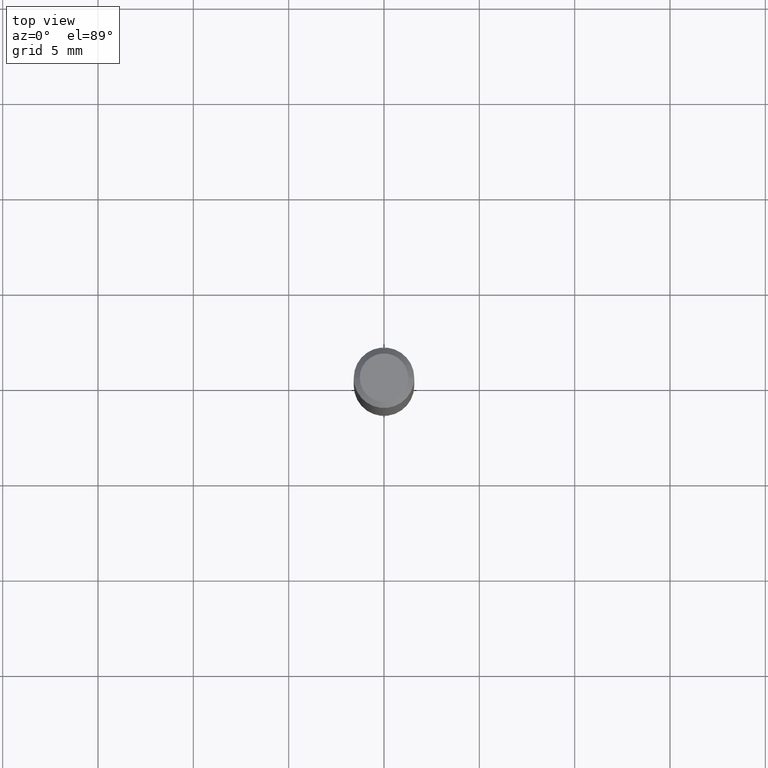
[diagram: clean part render]
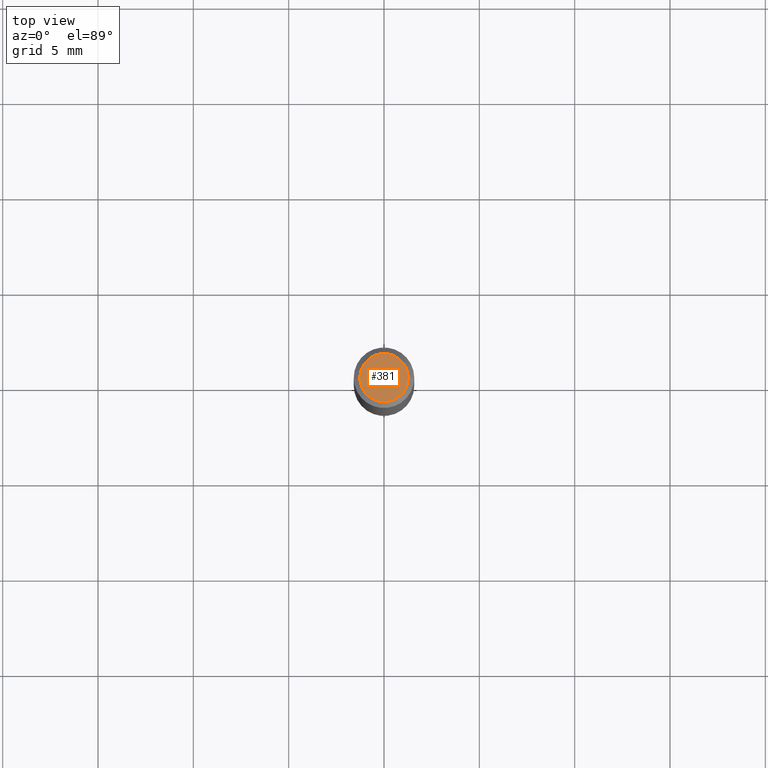
[diagram: same view with one face highlighted and labeled with its STEP entity id]
A machine part, top view. The second image highlights one B-rep face of the part: STEP entity #381.
In plain terms, the highlighted planar face has unit normal (0, -0, -1).
Its self-contained STEP definition (entity closure, byte-faithful):
#33 = DIRECTION ( 'NONE',  ( -2.445468806185136597E-29, 3.491481338843145583E-15, 1.000000000000000000 ) ) ;
#34 = EDGE_CURVE ( 'NONE', #76, #66, #392, .T. ) ;
#66 = VERTEX_POINT ( 'NONE', #487 ) ;
#73 = EDGE_LOOP ( 'NONE', ( #456, #78 ) ) ;
#76 = VERTEX_POINT ( 'NONE', #258 ) ;
#78 = ORIENTED_EDGE ( 'NONE', *, *, #34, .T. ) ;
#164 = EDGE_CURVE ( 'NONE', #66, #76, #319, .T. ) ;
#170 = CARTESIAN_POINT ( 'NONE',  ( 1.946643104841063088E-47, -2.779290439833033990E-33, -7.960204194457798443E-19 ) ) ;
#234 = CARTESIAN_POINT ( 'NONE',  ( 3.893286209682126177E-47, -5.558580879666067980E-33, -1.592040838891559689E-18 ) ) ;
#258 = CARTESIAN_POINT ( 'NONE',  ( 0.04999999999999999584, -4.077247707424184705E-16, -1.592040838888913461E-18 ) ) ;
#297 = DIRECTION ( 'NONE',  ( 1.000000000000000000, -6.982962677686265922E-15, 4.875957971899673662E-29 ) ) ;
#304 = PLANE ( 'NONE',  #347 ) ;
#312 = DIRECTION ( 'NONE',  ( 2.438088387897960049E-29, -3.491481338843145188E-15, -1.000000000000000000 ) ) ;
#319 = CIRCLE ( 'NONE', #407, 0.04999999999999999584 ) ;
#339 = CARTESIAN_POINT ( 'NONE',  ( 3.893286209682126177E-47, -5.558580879666067980E-33, -1.592040838891559689E-18 ) ) ;
#342 = DIRECTION ( 'NONE',  ( -1.000000000000000000, 6.982962677686265922E-15, -4.876176775795935793E-29 ) ) ;
#347 = AXIS2_PLACEMENT_3D ( 'NONE', #170, #312, #342 ) ;
#357 = FACE_OUTER_BOUND ( 'NONE', #73, .T. ) ;
#381 = ADVANCED_FACE ( 'NONE', ( #357 ), #304, .F. ) ;
#392 = CIRCLE ( 'NONE', #446, 0.04999999999999999584 ) ;
#407 = AXIS2_PLACEMENT_3D ( 'NONE', #339, #420, #297 ) ;
#420 = DIRECTION ( 'NONE',  ( -2.445468806185136597E-29, 3.491481338843145583E-15, 1.000000000000000000 ) ) ;
#446 = AXIS2_PLACEMENT_3D ( 'NONE', #234, #33, #452 ) ;
#452 = DIRECTION ( 'NONE',  ( 1.000000000000000000, -6.982962677686265922E-15, 4.875957971899673662E-29 ) ) ;
#456 = ORIENTED_EDGE ( 'NONE', *, *, #164, .T. ) ;
#487 = CARTESIAN_POINT ( 'NONE',  ( -0.04999999999999999584, 3.709698922520826725E-16, -1.592040838894077649E-18 ) ) ;